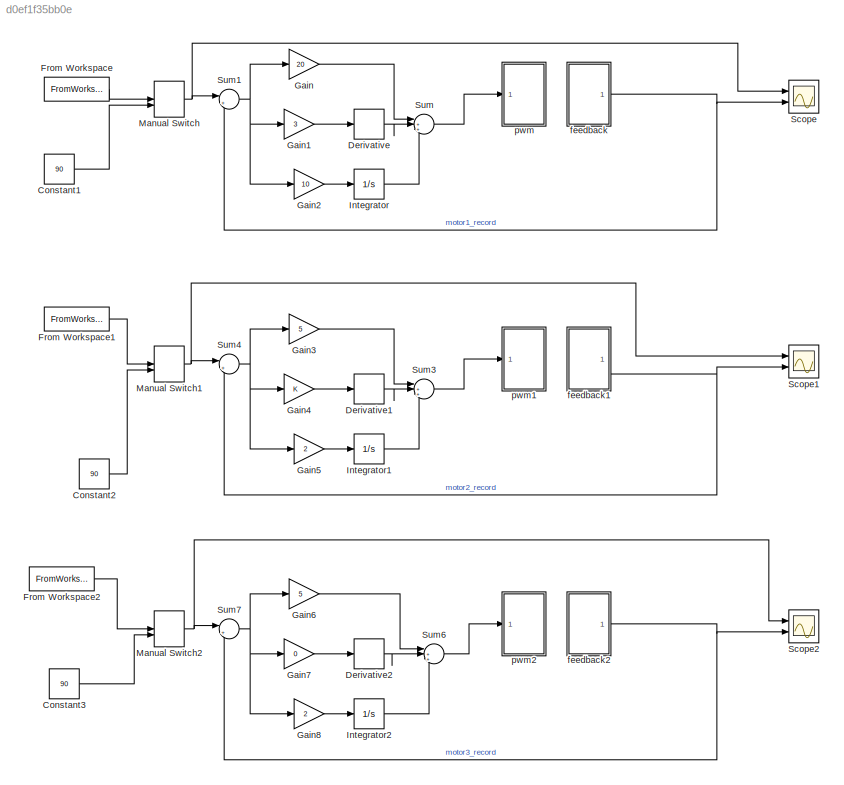
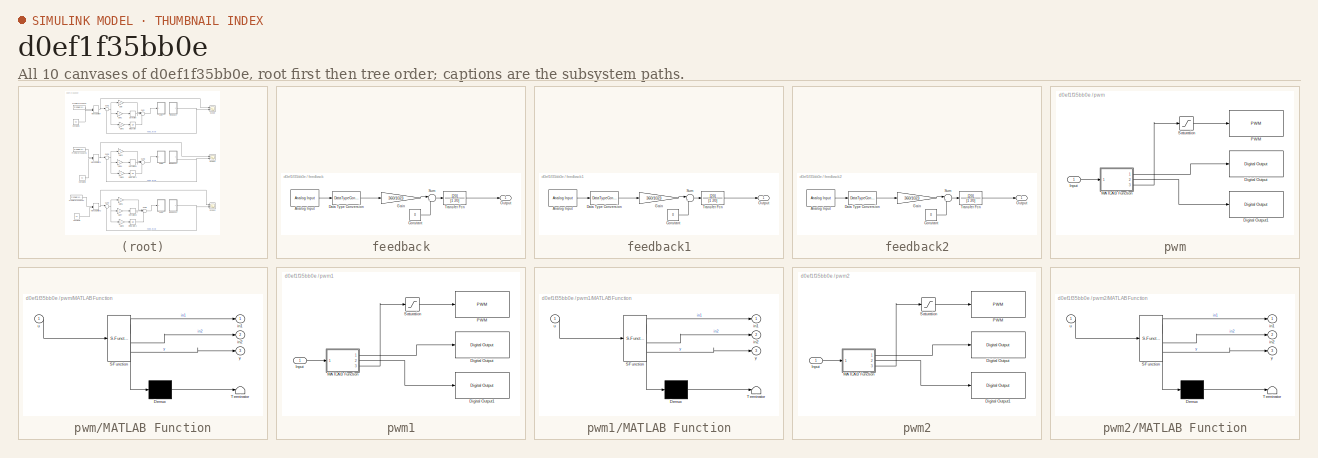
[diagram: thumbnail index - all 10 canvases of the model, root first then tree order]
MODEL slx_d0ef1f35bb0e
KIND model
CONFIG AbsTol = auto
CONFIG EnableMultiTasking = on
CONFIG FixedStep = 0.01
CONFIG MaxStep = auto
CONFIG MinStep = auto
CONFIG RelTol = 1e-3
CONFIG SampleTimeConstraint = Unconstrained
CONFIG Solver = FixedStepAuto
CONFIG SolverName = FixedStepAuto
CONFIG StartTime = 0.0
CONFIG StopTime = 200
BLOCK [Constant] Constant1
  Value = 90
BLOCK [Constant] Constant2
  Value = 90
BLOCK [Constant] Constant3
  Value = 90
BLOCK [Derivative] Derivative
  CoefficientInTFapproximation = 20
BLOCK [Derivative] Derivative1
  CoefficientInTFapproximation = 20
BLOCK [Derivative] Derivative2
  CoefficientInTFapproximation = 20
BLOCK [FromWorkspace] From Workspace
  Commented = on
  Interpolate = off
  OutputAfterFinalValue = Cyclic repetition
  SampleTime = 0.2
  VariableName = t1
BLOCK [FromWorkspace] From Workspace1
  Commented = on
  Interpolate = off
  OutputAfterFinalValue = Cyclic repetition
  SampleTime = 0.2
  VariableName = t2
BLOCK [FromWorkspace] From Workspace2
  Commented = on
  Interpolate = off
  OutputAfterFinalValue = Cyclic repetition
  SampleTime = 0.2
  VariableName = t3
BLOCK [Gain] Gain
  Gain = 20
BLOCK [Gain] Gain1
  Gain = 3
BLOCK [Gain] Gain2
  Gain = 10
BLOCK [Gain] Gain3
  Gain = 5
BLOCK [Gain] Gain4
BLOCK [Gain] Gain5
  Gain = 2
BLOCK [Gain] Gain6
  Gain = 5
BLOCK [Gain] Gain7
  Gain = 0
BLOCK [Gain] Gain8
  Gain = 2
BLOCK [Integrator] Integrator
  Ports = [1, 1]
BLOCK [Integrator] Integrator1
  Ports = [1, 1]
BLOCK [Integrator] Integrator2
  Ports = [1, 1]
BLOCK [ManualSwitch] Manual Switch
  CurrentSetting = 0
BLOCK [ManualSwitch] Manual Switch1
  CurrentSetting = 0
BLOCK [ManualSwitch] Manual Switch2
  CurrentSetting = 0
BLOCK [Scope] Scope
  Floating = off
  NumInputPorts = 2
  Ports = [2]
  ScopeSpecificationString = Simulink.scopes.TimeScopeBlockCfg('CurrentConfiguration', extmgr.ConfigurationSet(extmgr.Configuration('Core','General UI',true),extmgr.Configuration('Core','Source UI',true),extmgr.Configuration('Sources','WiredSimulink',true),extmgr.Configuration('Visuals','Time Domain',true,'SerializedDisplays',{struct('MinYLimReal','-11.70081','MaxYLimReal','105.30733','YLabelReal','','MinYLimMag','0.00000','M...<+1402ch>
BLOCK [Scope] Scope1
  Floating = off
  NumInputPorts = 2
  Ports = [2]
  ScopeSpecificationString = Simulink.scopes.TimeScopeBlockCfg('CurrentConfiguration', extmgr.ConfigurationSet(extmgr.Configuration('Core','General UI',true),extmgr.Configuration('Core','Source UI',true),extmgr.Configuration('Sources','WiredSimulink',true,'DataLoggingVariableName','ScopeData1'),extmgr.Configuration('Visuals','Time Domain',true,'SerializedDisplays',{struct('MinYLimReal','-11.25','MaxYLimReal','101.25','YLabelR...<+1481ch>
BLOCK [Scope] Scope2
  Floating = off
  NumInputPorts = 2
  Ports = [2]
  ScopeSpecificationString = Simulink.scopes.TimeScopeBlockCfg('CurrentConfiguration', extmgr.ConfigurationSet(extmgr.Configuration('Core','General UI',true),extmgr.Configuration('Core','Source UI',true),extmgr.Configuration('Sources','WiredSimulink',true,'DataLoggingVariableName','ScopeData2'),extmgr.Configuration('Visuals','Time Domain',true,'SerializedDisplays',{struct('MinYLimReal','-859515541358776430602832125624320.0000...<+1689ch>
BLOCK [Sum] Sum
  Inputs = |+++
  Ports = [3, 1]
BLOCK [Sum] Sum1
  Inputs = |+-
  Ports = [2, 1]
BLOCK [Sum] Sum3
  Inputs = |+++
  Ports = [3, 1]
BLOCK [Sum] Sum4
  Inputs = |+-
  Ports = [2, 1]
BLOCK [Sum] Sum6
  Inputs = |+++
  Ports = [3, 1]
BLOCK [Sum] Sum7
  Inputs = |+-
  Ports = [2, 1]
BLOCK [SubSystem] feedback
  Ports = [0, 1]
  RequestExecContextInheritance = off
BLOCK [Reference] feedback/Analog Input  REF=arduinolib/Analog Input
  Ports = [0, 1]
  SourceBlock = arduinolib/Analog Input
  SourceProductBaseCode = ARDUINO
  SourceType = Arduino Analog Input
BLOCK [Constant] feedback/Constant
  Value = 0
BLOCK [DataTypeConversion] feedback/Data Type Conversion
  RndMeth = Floor
  SaturateOnIntegerOverflow = off
BLOCK [Gain] feedback/Gain
  Gain = 360/1023
BLOCK [Outport] feedback/Output
BLOCK [Sum] feedback/Sum
  Inputs = |+-
  Ports = [2, 1]
BLOCK [TransferFcn] feedback/Transfer Fcn
  Denominator = [1 20]
  Numerator = [20]
BLOCK [SubSystem] feedback1
  Ports = [0, 1]
  RequestExecContextInheritance = off
BLOCK [Reference] feedback1/Analog Input  REF=arduinolib/Analog Input
  Ports = [0, 1]
  SourceBlock = arduinolib/Analog Input
  SourceProductBaseCode = ARDUINO
  SourceType = Arduino Analog Input
BLOCK [Constant] feedback1/Constant
  Value = 0
BLOCK [DataTypeConversion] feedback1/Data Type Conversion
  RndMeth = Floor
  SaturateOnIntegerOverflow = off
BLOCK [Gain] feedback1/Gain
  Gain = 360/1023
BLOCK [Outport] feedback1/Output
BLOCK [Sum] feedback1/Sum
  Inputs = |+-
  Ports = [2, 1]
BLOCK [TransferFcn] feedback1/Transfer Fcn
  Denominator = [1 20]
  Numerator = [20]
BLOCK [SubSystem] feedback2
  Ports = [0, 1]
  RequestExecContextInheritance = off
BLOCK [Reference] feedback2/Analog Input  REF=arduinolib/Analog Input
  Ports = [0, 1]
  SourceBlock = arduinolib/Analog Input
  SourceProductBaseCode = ARDUINO
  SourceType = Arduino Analog Input
BLOCK [Constant] feedback2/Constant
  Value = 0
BLOCK [DataTypeConversion] feedback2/Data Type Conversion
  RndMeth = Floor
  SaturateOnIntegerOverflow = off
BLOCK [Gain] feedback2/Gain
  Gain = 360/1023
BLOCK [Outport] feedback2/Output
BLOCK [Sum] feedback2/Sum
  Inputs = |+-
  Ports = [2, 1]
BLOCK [TransferFcn] feedback2/Transfer Fcn
  Denominator = [1 20]
  Numerator = [20]
BLOCK [SubSystem] pwm
  Ports = [1]
  RequestExecContextInheritance = off
BLOCK [Reference] pwm/Digital Output  REF=arduinolib/Digital Output
  Ports = [1]
  SourceBlock = arduinolib/Digital Output
  SourceProductBaseCode = ARDUINO
  SourceType = Arduino Digital Output
BLOCK [Reference] pwm/Digital Output1  REF=arduinolib/Digital Output
  Ports = [1]
  SourceBlock = arduinolib/Digital Output
  SourceProductBaseCode = ARDUINO
  SourceType = Arduino Digital Output
BLOCK [Inport] pwm/Input
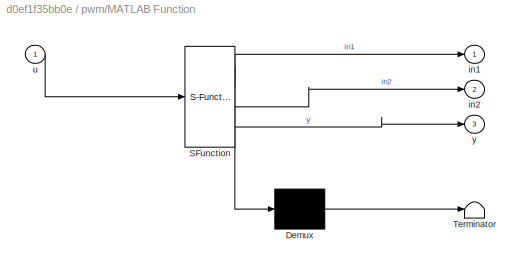
BLOCK [SubSystem] pwm/MATLAB Function
  ErrorFcn = Stateflow.Translate.translate
  PermitHierarchicalResolution = ExplicitOnly
  Ports = [1, 3]
  RequestExecContextInheritance = off
  SFBlockType = MATLAB Function
  TreatAsAtomicUnit = on
BLOCK [Demux] pwm/MATLAB Function/ Demux 
  Outputs = 1
  Ports = [1, 1]
BLOCK [S-Function] pwm/MATLAB Function/ SFunction 
  EnableBusSupport = on
  FunctionName = sf_sfun
  PortCounts = [1 4]
  Ports = [1, 4]
  SFcnIsStateOwnerBlock = off
  SFunctionDeploymentMode = off
  Tag = Stateflow S-Function R2018a 2
BLOCK [Terminator] pwm/MATLAB Function/ Terminator 
BLOCK [Outport] pwm/MATLAB Function/in1
BLOCK [Outport] pwm/MATLAB Function/in2
  Port = 2
BLOCK [Inport] pwm/MATLAB Function/u
BLOCK [Outport] pwm/MATLAB Function/y
  Port = 3
BLOCK [Reference] pwm/PWM  REF=arduinolib/PWM
  Ports = [1]
  SourceBlock = arduinolib/PWM
  SourceProductBaseCode = ARDUINO
  SourceType = Arduino PWM
BLOCK [Saturate] pwm/Saturation
  LowerLimit = 0
  UpperLimit = 8/12*255
BLOCK [SubSystem] pwm1
  Ports = [1]
  RequestExecContextInheritance = off
BLOCK [Reference] pwm1/Digital Output  REF=arduinolib/Digital Output
  Ports = [1]
  SourceBlock = arduinolib/Digital Output
  SourceProductBaseCode = ARDUINO
  SourceType = Arduino Digital Output
BLOCK [Reference] pwm1/Digital Output1  REF=arduinolib/Digital Output
  Ports = [1]
  SourceBlock = arduinolib/Digital Output
  SourceProductBaseCode = ARDUINO
  SourceType = Arduino Digital Output
BLOCK [Inport] pwm1/Input
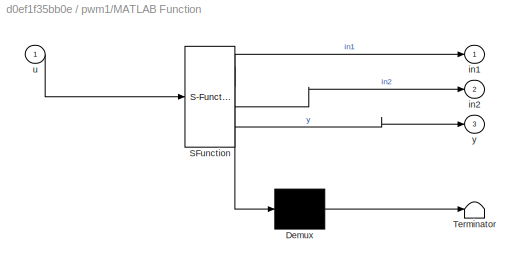
BLOCK [SubSystem] pwm1/MATLAB Function
  ErrorFcn = Stateflow.Translate.translate
  PermitHierarchicalResolution = ExplicitOnly
  Ports = [1, 3]
  RequestExecContextInheritance = off
  SFBlockType = MATLAB Function
  TreatAsAtomicUnit = on
BLOCK [Demux] pwm1/MATLAB Function/ Demux 
  Outputs = 1
  Ports = [1, 1]
BLOCK [S-Function] pwm1/MATLAB Function/ SFunction 
  EnableBusSupport = on
  FunctionName = sf_sfun
  PortCounts = [1 4]
  Ports = [1, 4]
  SFcnIsStateOwnerBlock = off
  SFunctionDeploymentMode = off
  Tag = Stateflow S-Function R2018a 1
BLOCK [Terminator] pwm1/MATLAB Function/ Terminator 
BLOCK [Outport] pwm1/MATLAB Function/in1
BLOCK [Outport] pwm1/MATLAB Function/in2
  Port = 2
BLOCK [Inport] pwm1/MATLAB Function/u
BLOCK [Outport] pwm1/MATLAB Function/y
  Port = 3
BLOCK [Reference] pwm1/PWM  REF=arduinolib/PWM
  Ports = [1]
  SourceBlock = arduinolib/PWM
  SourceProductBaseCode = ARDUINO
  SourceType = Arduino PWM
BLOCK [Saturate] pwm1/Saturation
  LowerLimit = 0
  UpperLimit = 8/12*255
BLOCK [SubSystem] pwm2
  Ports = [1]
  RequestExecContextInheritance = off
BLOCK [Reference] pwm2/Digital Output  REF=arduinolib/Digital Output
  Ports = [1]
  SourceBlock = arduinolib/Digital Output
  SourceProductBaseCode = ARDUINO
  SourceType = Arduino Digital Output
BLOCK [Reference] pwm2/Digital Output1  REF=arduinolib/Digital Output
  Ports = [1]
  SourceBlock = arduinolib/Digital Output
  SourceProductBaseCode = ARDUINO
  SourceType = Arduino Digital Output
BLOCK [Inport] pwm2/Input
BLOCK [SubSystem] pwm2/MATLAB Function
  ErrorFcn = Stateflow.Translate.translate
  PermitHierarchicalResolution = ExplicitOnly
  Ports = [1, 3]
  RequestExecContextInheritance = off
  SFBlockType = MATLAB Function
  TreatAsAtomicUnit = on
BLOCK [Demux] pwm2/MATLAB Function/ Demux 
  Outputs = 1
  Ports = [1, 1]
BLOCK [S-Function] pwm2/MATLAB Function/ SFunction 
  EnableBusSupport = on
  FunctionName = sf_sfun
  PortCounts = [1 4]
  Ports = [1, 4]
  SFcnIsStateOwnerBlock = off
  SFunctionDeploymentMode = off
  Tag = Stateflow S-Function R2018a 3
BLOCK [Terminator] pwm2/MATLAB Function/ Terminator 
BLOCK [Outport] pwm2/MATLAB Function/in1
BLOCK [Outport] pwm2/MATLAB Function/in2
  Port = 2
BLOCK [Inport] pwm2/MATLAB Function/u
BLOCK [Outport] pwm2/MATLAB Function/y
  Port = 3
BLOCK [Reference] pwm2/PWM  REF=arduinolib/PWM
  Ports = [1]
  SourceBlock = arduinolib/PWM
  SourceProductBaseCode = ARDUINO
  SourceType = Arduino PWM
BLOCK [Saturate] pwm2/Saturation
  LowerLimit = 0
  UpperLimit = 8/12*255
LINE Constant1:1 -> Manual Switch:2
LINE Constant2:1 -> Manual Switch1:2
LINE Constant3:1 -> Manual Switch2:2
LINE Derivative1:1 -> Sum3:2
LINE Derivative2:1 -> Sum6:2
LINE Derivative:1 -> Sum:2
LINE From Workspace1:1 -> Manual Switch1:1
LINE From Workspace2:1 -> Manual Switch2:1
LINE From Workspace:1 -> Manual Switch:1
LINE Gain1:1 -> Derivative:1
LINE Gain2:1 -> Integrator:1
LINE Gain3:1 -> Sum3:1
LINE Gain4:1 -> Derivative1:1
LINE Gain5:1 -> Integrator1:1
LINE Gain6:1 -> Sum6:1
LINE Gain7:1 -> Derivative2:1
LINE Gain8:1 -> Integrator2:1
LINE Gain:1 -> Sum:1
LINE Integrator1:1 -> Sum3:3
LINE Integrator2:1 -> Sum6:3
LINE Integrator:1 -> Sum:3
NET Manual Switch1:1 -> Scope1:1, Sum4:1
NET Manual Switch2:1 -> Scope2:1, Sum7:1
NET Manual Switch:1 -> Scope:1, Sum1:1
NET Sum1:1 -> Gain1:1, Gain2:1, Gain:1
LINE Sum3:1 -> pwm1:1
NET Sum4:1 -> Gain3:1, Gain4:1, Gain5:1
LINE Sum6:1 -> pwm2:1
NET Sum7:1 -> Gain6:1, Gain7:1, Gain8:1
LINE Sum:1 -> pwm:1
LINE feedback/Analog Input:1 -> feedback/Data Type Conversion:1
LINE feedback/Constant:1 -> feedback/Sum:2
LINE feedback/Data Type Conversion:1 -> feedback/Gain:1
LINE feedback/Gain:1 -> feedback/Sum:1
LINE feedback/Sum:1 -> feedback/Transfer Fcn:1
LINE feedback/Transfer Fcn:1 -> feedback/Output:1
LINE feedback1/Analog Input:1 -> feedback1/Data Type Conversion:1
LINE feedback1/Constant:1 -> feedback1/Sum:2
LINE feedback1/Data Type Conversion:1 -> feedback1/Gain:1
LINE feedback1/Gain:1 -> feedback1/Sum:1
LINE feedback1/Sum:1 -> feedback1/Transfer Fcn:1
LINE feedback1/Transfer Fcn:1 -> feedback1/Output:1
NET feedback1:1 -> Scope1:2, Sum4:2
LINE feedback2/Analog Input:1 -> feedback2/Data Type Conversion:1
LINE feedback2/Constant:1 -> feedback2/Sum:2
LINE feedback2/Data Type Conversion:1 -> feedback2/Gain:1
LINE feedback2/Gain:1 -> feedback2/Sum:1
LINE feedback2/Sum:1 -> feedback2/Transfer Fcn:1
LINE feedback2/Transfer Fcn:1 -> feedback2/Output:1
NET feedback2:1 -> Scope2:2, Sum7:2
NET feedback:1 -> Scope:2, Sum1:2
LINE pwm/Input:1 -> pwm/MATLAB Function:1
LINE pwm/MATLAB Function:1 -> pwm/Digital Output:1
LINE pwm/MATLAB Function:2 -> pwm/Digital Output1:1
LINE pwm/MATLAB Function:3 -> pwm/Saturation:1
LINE pwm/Saturation:1 -> pwm/PWM:1
LINE pwm1/Input:1 -> pwm1/MATLAB Function:1
LINE pwm1/MATLAB Function:1 -> pwm1/Digital Output:1
LINE pwm1/MATLAB Function:2 -> pwm1/Digital Output1:1
LINE pwm1/MATLAB Function:3 -> pwm1/Saturation:1
LINE pwm1/Saturation:1 -> pwm1/PWM:1
LINE pwm2/Input:1 -> pwm2/MATLAB Function:1
LINE pwm2/MATLAB Function:1 -> pwm2/Digital Output:1
LINE pwm2/MATLAB Function:2 -> pwm2/Digital Output1:1
LINE pwm2/MATLAB Function:3 -> pwm2/Saturation:1
LINE pwm2/Saturation:1 -> pwm2/PWM:1
note: NET lines group one-source signal fan-out (src -> all destinations, sorted); 1:1 wires keep LINE
CHART pwm1/MATLAB Function states=1 transitions=1
  STATE_LABEL 'eML_blk_kernel()'
  STATE_LABEL 'SCRIPT:\nfunction [in1,in2,y] = fcn(u)\nif u > 0\n    in1 = 0;\n    in2 = 1;\n    y=u;\nelse\n    in1 = 1;\n    in2 = 0;\n    y = -u;\nend\n\nend'
CHART pwm/MATLAB Function states=1 transitions=1
  STATE_LABEL 'eML_blk_kernel()'
  STATE_LABEL 'SCRIPT:\nfunction [in1,in2,y] = fcn(u)\nif u > 0\n    in1 = 1;\n    in2 = 0;\n    y=u;\nelse\n    in1 = 0;\n    in2 = 1;\n    y = -u;\nend\n\nend'
CHART pwm2/MATLAB Function states=1 transitions=1
  STATE_LABEL 'eML_blk_kernel()'
  STATE_LABEL 'SCRIPT:\nfunction [in1,in2,y] = fcn(u)\nif u > 0\n    in1 = 1;\n    in2 = 0;\n    y=u;\nelse\n    in1 = 0;\n    in2 = 1;\n    y = -u;\nend\n\nend'
